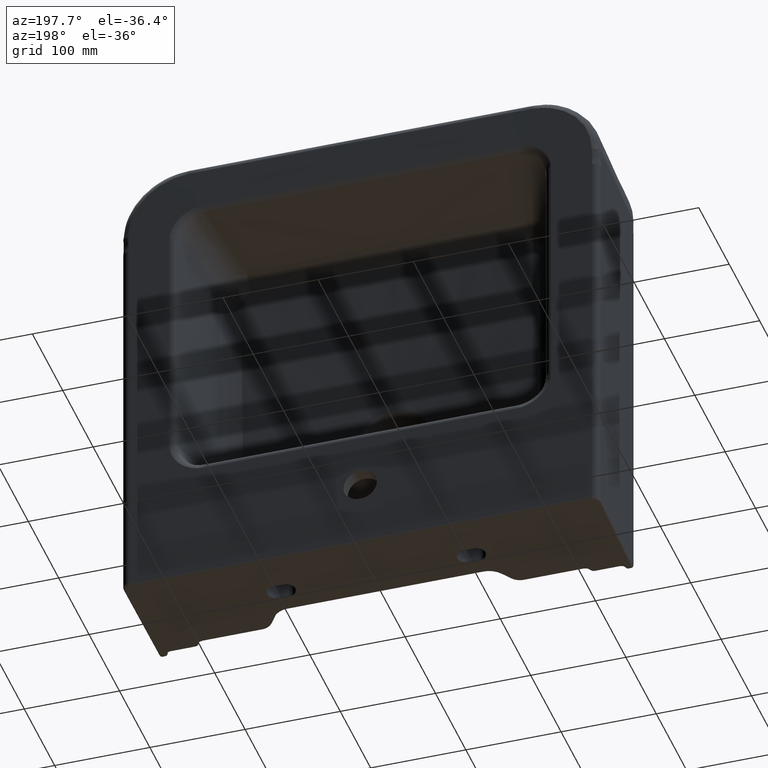
[diagram: clean part render]
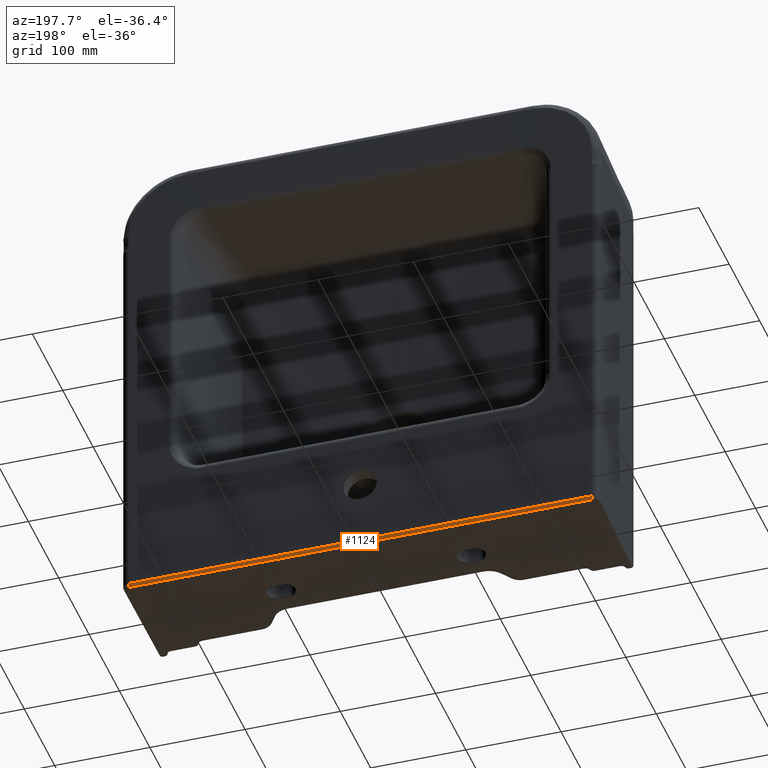
[diagram: same view with one face highlighted and labeled with its STEP entity id]
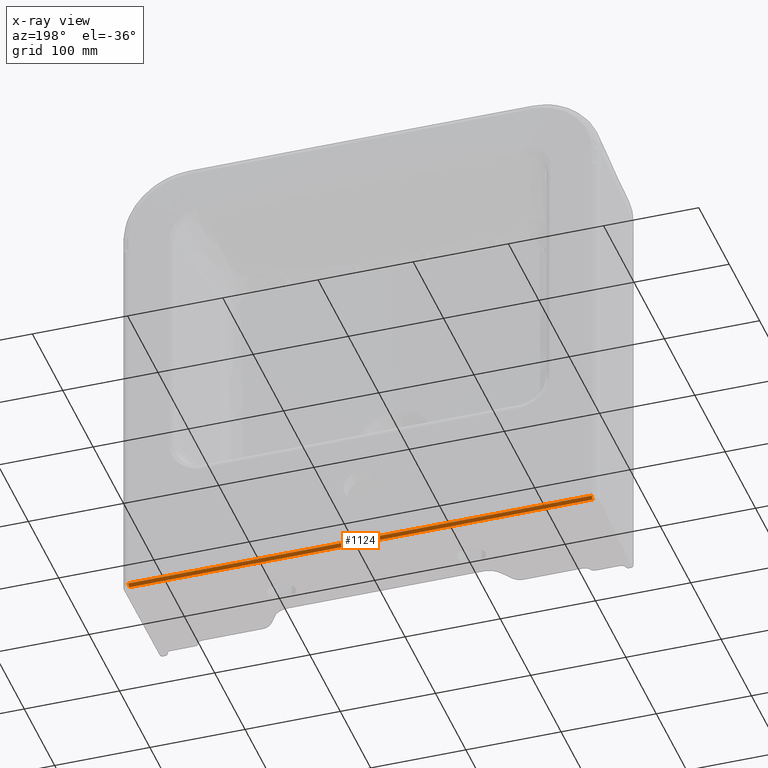
[diagram: x-ray of the same camera — body ghosted, the highlighted face saturated]
A machine part, auxiliary view. The second image highlights one B-rep face of the part: STEP entity #1124.
The next image is the same camera in x-ray: the body ghosted, the highlighted face saturated — about 0% of this face is hidden behind the body in this view.
In plain terms, the highlighted cylindrical surface (edge-blend (fillet) strip) has radius 2.82 mm, axis along (1, 0, -0).
Its self-contained STEP definition (entity closure, byte-faithful):
#203=CYLINDRICAL_SURFACE('',#5056,2.82);
#542=LINE('',#6338,#695);
#595=LINE('',#6548,#748);
#695=VECTOR('',#5119,1.);
#748=VECTOR('',#5260,1.);
#1124=ADVANCED_FACE('',(#1419),#203,.T.);
#1419=FACE_OUTER_BOUND('',#1728,.T.);
#1728=EDGE_LOOP('',(#3292,#3293,#3294,#3295));
#1912=CIRCLE('',#5052,2.82);
#1914=CIRCLE('',#5055,2.82);
#3292=ORIENTED_EDGE('',*,*,#4402,.T.);
#3293=ORIENTED_EDGE('',*,*,#3860,.F.);
#3294=ORIENTED_EDGE('',*,*,#4404,.F.);
#3295=ORIENTED_EDGE('',*,*,#3771,.F.);
#3365=VERTEX_POINT('',#6339);
#3366=VERTEX_POINT('',#6340);
#3450=VERTEX_POINT('',#6547);
#3451=VERTEX_POINT('',#6549);
#3771=EDGE_CURVE('',#3365,#3366,#542,.T.);
#3860=EDGE_CURVE('',#3450,#3451,#595,.T.);
#4402=EDGE_CURVE('',#3365,#3451,#1912,.T.);
#4404=EDGE_CURVE('',#3366,#3450,#1914,.T.);
#5052=AXIS2_PLACEMENT_3D('',#13382,#5982,#5983);
#5055=AXIS2_PLACEMENT_3D('',#13403,#5988,#5989);
#5056=AXIS2_PLACEMENT_3D('',#13404,#5990,#5991);
#5119=DIRECTION('',(1.,3.02396454661982E-011,0.));
#5260=DIRECTION('',(-1.,-3.02396454661982E-011,0.));
#5982=DIRECTION('',(1.,3.02468678496804E-011,-9.69352280335579E-026));
#5983=DIRECTION('',(-3.01866490826716E-011,0.998134798421869,0.0610485395348565));
#5988=DIRECTION('',(1.,3.02468678496804E-011,-9.53196408996653E-026));
#5989=DIRECTION('',(-3.01866490826716E-011,0.998134798421869,0.0610485395348565));
#5990=DIRECTION('',(1.,3.02396454661982E-011,0.));
#5991=DIRECTION('',(-3.01866490826716E-011,0.998134798421869,0.0610485395348565));
#6338=CARTESIAN_POINT('',(249.580053475754,191.152523413892,24.8870558230637));
#6339=CARTESIAN_POINT('',(-243.328003265051,191.152523398986,24.8870558230637));
#6340=CARTESIAN_POINT('',(243.32800326488,191.152523413703,24.8870558230637));
#6547=CARTESIAN_POINT('',(243.328003264965,188.333623014861,27.6283123064245));
#6548=CARTESIAN_POINT('',(249.580053475839,188.333623015051,27.6283123064245));
#6549=CARTESIAN_POINT('',(-243.328003264965,188.333623000145,27.6283123064245));
#13382=CARTESIAN_POINT('',(-243.328003264965,188.333623000145,24.8083123064245));
#13403=CARTESIAN_POINT('',(243.328003264965,188.333623014861,24.8083123064245));
#13404=CARTESIAN_POINT('',(249.580053475839,188.333623015051,24.8083123064245));